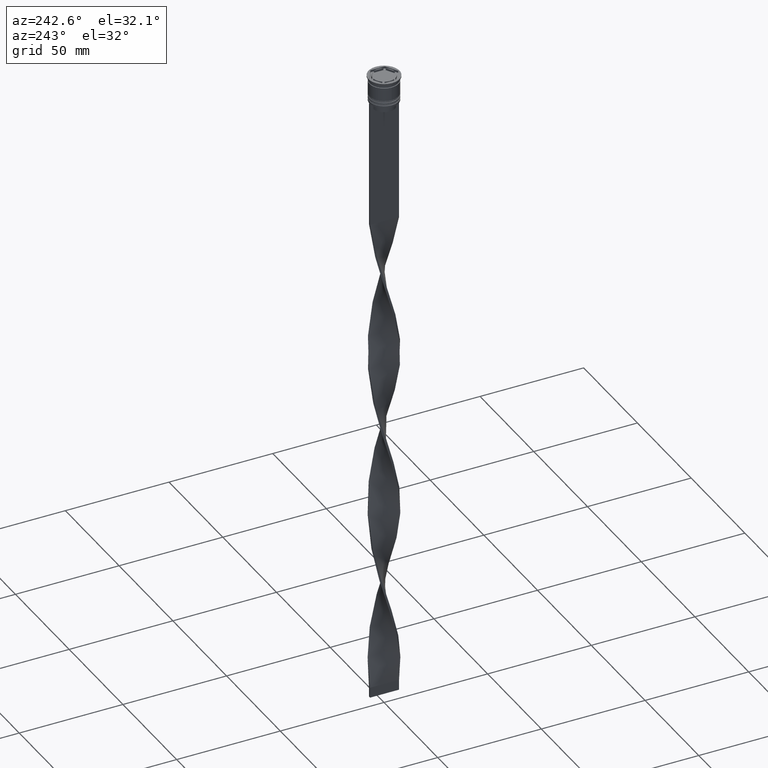
[diagram: clean part render]
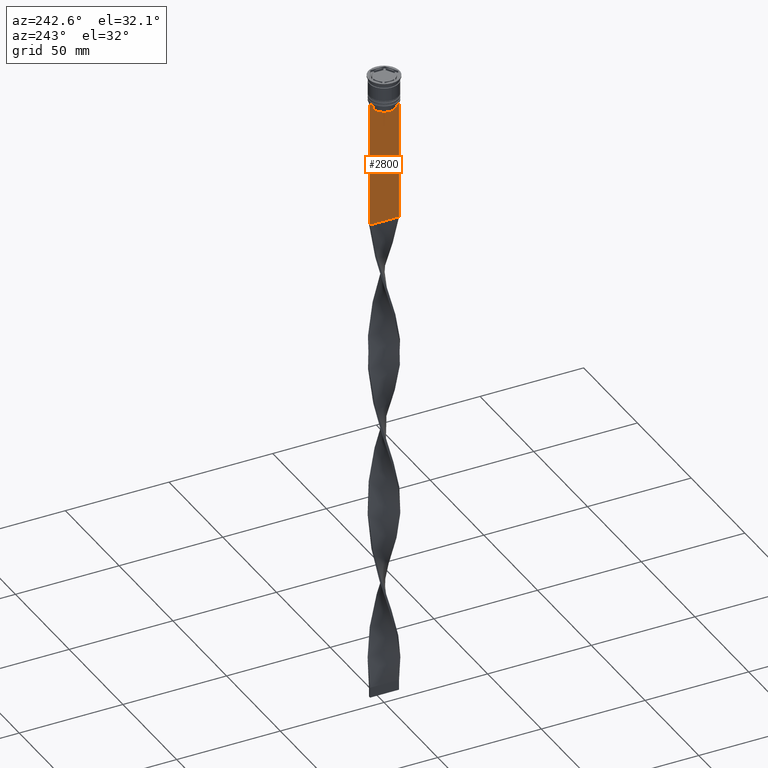
[diagram: same view with one face highlighted and labeled with its STEP entity id]
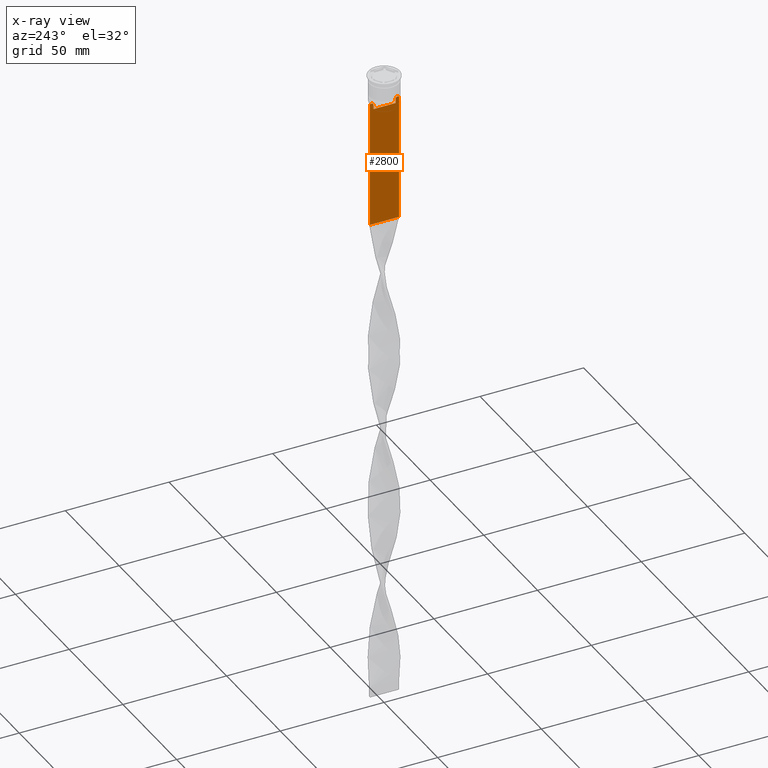
[diagram: x-ray of the same camera — body ghosted, the highlighted face saturated]
A machine part, auxiliary view. The second image highlights one B-rep face of the part: STEP entity #2800.
The next image is the same camera in x-ray: the body ghosted, the highlighted face saturated — about 0% of this face is hidden behind the body in this view.
In plain terms, the highlighted planar face has unit normal (-1, 0, 0).
Its self-contained STEP definition (entity closure, byte-faithful):
#16 = DIRECTION ( 'NONE',  ( 0.000000000000000000, -1.000000000000000000, 0.000000000000000000 ) ) ;
#54 = VERTEX_POINT ( 'NONE', #3497 ) ;
#191 = CARTESIAN_POINT ( 'NONE',  ( -0.5000000000000000000, -5.376802023508029826, -15.50000000000000000 ) ) ;
#214 = CARTESIAN_POINT ( 'NONE',  ( -0.5000000000000000000, -5.878775382679629402, -12.50000000000000000 ) ) ;
#247 = LINE ( 'NONE', #3737, #359 ) ;
#256 = LINE ( 'NONE', #2760, #701 ) ;
#268 = ORIENTED_EDGE ( 'NONE', *, *, #589, .F. ) ;
#333 = EDGE_CURVE ( 'NONE', #823, #2657, #3440, .T. ) ;
#359 = VECTOR ( 'NONE', #3783, 1000.000000000000000 ) ;
#464 = EDGE_CURVE ( 'NONE', #3426, #2843, #247, .T. ) ;
#536 = CARTESIAN_POINT ( 'NONE',  ( -0.5000000000000000000, 5.544156989057553275, -12.83336397825725861 ) ) ;
#589 = EDGE_CURVE ( 'NONE', #3008, #3426, #703, .T. ) ;
#617 = ORIENTED_EDGE ( 'NONE', *, *, #1459, .F. ) ;
#701 = VECTOR ( 'NONE', #3365, 1000.000000000000000 ) ;
#703 = LINE ( 'NONE', #1912, #3751 ) ;
#705 = ORIENTED_EDGE ( 'NONE', *, *, #2026, .F. ) ;
#762 = CARTESIAN_POINT ( 'NONE',  ( -0.5000000000000000000, -6.999999999999997335, -12.50000000000000000 ) ) ;
#772 = EDGE_CURVE ( 'NONE', #2883, #1898, #3787, .T. ) ;
#804 = LINE ( 'NONE', #2517, #3082 ) ;
#819 = CARTESIAN_POINT ( 'NONE',  ( -0.5000000000000000000, -5.878775382679629402, -12.50000000000000000 ) ) ;
#823 = VERTEX_POINT ( 'NONE', #3097 ) ;
#908 = CARTESIAN_POINT ( 'NONE',  ( -0.5000000000000000000, -6.999999999999997335, -12.50000000000000000 ) ) ;
#955 = VERTEX_POINT ( 'NONE', #2378 ) ;
#1049 = EDGE_CURVE ( 'NONE', #2657, #54, #804, .T. ) ;
#1068 = ORIENTED_EDGE ( 'NONE', *, *, #464, .F. ) ;
#1078 = LINE ( 'NONE', #762, #2354 ) ;
#1173 = CARTESIAN_POINT ( 'NONE',  ( -0.5000000000000000000, -5.711478856069293286, -12.66669469529570335 ) ) ;
#1174 = ORIENTED_EDGE ( 'NONE', *, *, #1642, .F. ) ;
#1214 = EDGE_CURVE ( 'NONE', #3780, #2883, #2483, .T. ) ;
#1313 = DIRECTION ( 'NONE',  ( 0.000000000000000000, 0.000000000000000000, -1.000000000000000000 ) ) ;
#1393 = VECTOR ( 'NONE', #3960, 1000.000000000000000 ) ;
#1434 = VECTOR ( 'NONE', #2394, 1000.000000000000000 ) ;
#1447 = CARTESIAN_POINT ( 'NONE',  ( -0.5000000000000000000, -6.999999999999997335, -73.50000000000001421 ) ) ;
#1459 = EDGE_CURVE ( 'NONE', #1898, #2401, #1078, .T. ) ;
#1530 = DIRECTION ( 'NONE',  ( 0.000000000000000000, 0.000000000000000000, -1.000000000000000000 ) ) ;
#1539 = EDGE_CURVE ( 'NONE', #955, #2843, #256, .T. ) ;
#1544 = CARTESIAN_POINT ( 'NONE',  ( -0.5000000000000000000, -6.999999999999997335, -12.50000000000000000 ) ) ;
#1546 = ORIENTED_EDGE ( 'NONE', *, *, #2414, .F. ) ;
#1642 = EDGE_CURVE ( 'NONE', #2401, #3008, #3037, .T. ) ;
#1822 = DIRECTION ( 'NONE',  ( -1.000000000000000000, 0.000000000000000000, 0.000000000000000000 ) ) ;
#1898 = VERTEX_POINT ( 'NONE', #819 ) ;
#1908 = CARTESIAN_POINT ( 'NONE',  ( -0.5000000000000000000, -6.999999999999997335, -12.50000000000000000 ) ) ;
#1912 = CARTESIAN_POINT ( 'NONE',  ( -0.5000000000000000000, -6.999999999999997335, 1.535668847618198329 ) ) ;
#1940 = ORIENTED_EDGE ( 'NONE', *, *, #1049, .F. ) ;
#2026 = EDGE_CURVE ( 'NONE', #2667, #823, #3733, .T. ) ;
#2049 = ORIENTED_EDGE ( 'NONE', *, *, #772, .F. ) ;
#2073 = CARTESIAN_POINT ( 'NONE',  ( -0.5000000000000000000, -6.881860213634102053, -12.50000000000000000 ) ) ;
#2097 = CARTESIAN_POINT ( 'NONE',  ( -0.5000000000000000000, -5.376802023508029826, 0.000000000000000000 ) ) ;
#2181 = FACE_OUTER_BOUND ( 'NONE', #3011, .T. ) ;
#2187 = CARTESIAN_POINT ( 'NONE',  ( -0.5000000000000000000, 5.376802023508029826, -13.00000000000000178 ) ) ;
#2251 = AXIS2_PLACEMENT_3D ( 'NONE', #3459, #1822, #3108 ) ;
#2354 = VECTOR ( 'NONE', #3612, 1000.000000000000000 ) ;
#2378 = CARTESIAN_POINT ( 'NONE',  ( -0.5000000000000000000, 7.000000000000002665, -12.50000000000000000 ) ) ;
#2394 = DIRECTION ( 'NONE',  ( 0.000000000000000000, -1.000000000000000000, 0.000000000000000000 ) ) ;
#2401 = VERTEX_POINT ( 'NONE', #2073 ) ;
#2414 = EDGE_CURVE ( 'NONE', #54, #3780, #3353, .T. ) ;
#2427 = CARTESIAN_POINT ( 'NONE',  ( -0.5000000000000000000, -6.999999999999997335, -12.50000000000000000 ) ) ;
#2477 = CARTESIAN_POINT ( 'NONE',  ( -0.5000000000000000000, 7.000000000000002665, -73.50000000000001421 ) ) ;
#2483 = LINE ( 'NONE', #2097, #2547 ) ;
#2517 = CARTESIAN_POINT ( 'NONE',  ( -0.5000000000000000000, 5.376802023508029826, 0.000000000000000000 ) ) ;
#2547 = VECTOR ( 'NONE', #4024, 1000.000000000000000 ) ;
#2579 = VECTOR ( 'NONE', #4001, 1000.000000000000000 ) ;
#2657 = VERTEX_POINT ( 'NONE', #2970 ) ;
#2667 = VERTEX_POINT ( 'NONE', #2766 ) ;
#2683 = CARTESIAN_POINT ( 'NONE',  ( -0.5000000000000000000, 5.400000000000003908, -15.50000000000000000 ) ) ;
#2721 = CARTESIAN_POINT ( 'NONE',  ( -0.5000000000000000000, -5.376802023508029826, -13.00000000000000178 ) ) ;
#2760 = CARTESIAN_POINT ( 'NONE',  ( -0.5000000000000000000, 7.000000000000002665, 1.535668847618198329 ) ) ;
#2766 = CARTESIAN_POINT ( 'NONE',  ( -0.5000000000000000000, 6.881860213634102053, -12.50000000000000000 ) ) ;
#2786 = CARTESIAN_POINT ( 'NONE',  ( -0.5000000000000000000, -5.376802023508029826, -13.00000000000000178 ) ) ;
#2800 = ADVANCED_FACE ( 'NONE', ( #2181 ), #3824, .T. ) ;
#2843 = VERTEX_POINT ( 'NONE', #2477 ) ;
#2851 = ORIENTED_EDGE ( 'NONE', *, *, #1214, .F. ) ;
#2883 = VERTEX_POINT ( 'NONE', #2786 ) ;
#2970 = CARTESIAN_POINT ( 'NONE',  ( -0.5000000000000000000, 5.376802023508029826, -13.00000000000000178 ) ) ;
#3008 = VERTEX_POINT ( 'NONE', #908 ) ;
#3011 = EDGE_LOOP ( 'NONE', ( #4071, #705, #3169, #3242, #1068, #268, #1174, #617, #2049, #2851, #1546, #1940 ) ) ;
#3037 = LINE ( 'NONE', #2427, #1393 ) ;
#3082 = VECTOR ( 'NONE', #1530, 1000.000000000000000 ) ;
#3097 = CARTESIAN_POINT ( 'NONE',  ( -0.5000000000000000000, 5.878775382679629402, -12.50000000000000000 ) ) ;
#3108 = DIRECTION ( 'NONE',  ( 0.000000000000000000, 0.000000000000000000, 1.000000000000000000 ) ) ;
#3113 = CARTESIAN_POINT ( 'NONE',  ( -0.5000000000000000000, 5.878775382679629402, -12.50000000000000000 ) ) ;
#3169 = ORIENTED_EDGE ( 'NONE', *, *, #4049, .F. ) ;
#3242 = ORIENTED_EDGE ( 'NONE', *, *, #1539, .T. ) ;
#3353 = LINE ( 'NONE', #2683, #2579 ) ;
#3365 = DIRECTION ( 'NONE',  ( 0.000000000000000000, 0.000000000000000000, -1.000000000000000000 ) ) ;
#3426 = VERTEX_POINT ( 'NONE', #1447 ) ;
#3440 = B_SPLINE_CURVE_WITH_KNOTS ( 'NONE', 3,
 ( #3113, #3692, #536, #2187 ),
 .UNSPECIFIED., .F., .F.,
 ( 4, 4 ),
 ( 0.01003009312103698807, 0.01073859663834952557 ),
 .UNSPECIFIED. ) ;
#3441 = VECTOR ( 'NONE', #16, 1000.000000000000000 ) ;
#3459 = CARTESIAN_POINT ( 'NONE',  ( -0.5000000000000000000, -6.999999999999997335, 1.535668847618198329 ) ) ;
#3470 = LINE ( 'NONE', #1544, #1434 ) ;
#3497 = CARTESIAN_POINT ( 'NONE',  ( -0.5000000000000000000, 5.376802023508029826, -15.50000000000000000 ) ) ;
#3612 = DIRECTION ( 'NONE',  ( 0.000000000000000000, -1.000000000000000000, 0.000000000000000000 ) ) ;
#3692 = CARTESIAN_POINT ( 'NONE',  ( -0.5000000000000000000, 5.711478846560141598, -12.66669470477064685 ) ) ;
#3721 = CARTESIAN_POINT ( 'NONE',  ( -0.5000000000000000000, -5.544156999454441959, -12.83336396790503642 ) ) ;
#3733 = LINE ( 'NONE', #1908, #3441 ) ;
#3737 = CARTESIAN_POINT ( 'NONE',  ( -0.5000000000000000000, -6.999999999999997335, -73.50000000000001421 ) ) ;
#3751 = VECTOR ( 'NONE', #1313, 1000.000000000000000 ) ;
#3780 = VERTEX_POINT ( 'NONE', #191 ) ;
#3783 = DIRECTION ( 'NONE',  ( 0.000000000000000000, 1.000000000000000000, 0.000000000000000000 ) ) ;
#3787 = B_SPLINE_CURVE_WITH_KNOTS ( 'NONE', 3,
 ( #2721, #3721, #1173, #214 ),
 .UNSPECIFIED., .F., .F.,
 ( 4, 4 ),
 ( 0.02539176325380714666, 0.02610162431828674801 ),
 .UNSPECIFIED. ) ;
#3824 = PLANE ( 'NONE',  #2251 ) ;
#3960 = DIRECTION ( 'NONE',  ( 0.000000000000000000, -1.000000000000000000, 0.000000000000000000 ) ) ;
#4001 = DIRECTION ( 'NONE',  ( 0.000000000000000000, -1.000000000000000000, 0.000000000000000000 ) ) ;
#4024 = DIRECTION ( 'NONE',  ( -0.000000000000000000, -0.000000000000000000, 1.000000000000000000 ) ) ;
#4049 = EDGE_CURVE ( 'NONE', #955, #2667, #3470, .T. ) ;
#4071 = ORIENTED_EDGE ( 'NONE', *, *, #333, .F. ) ;